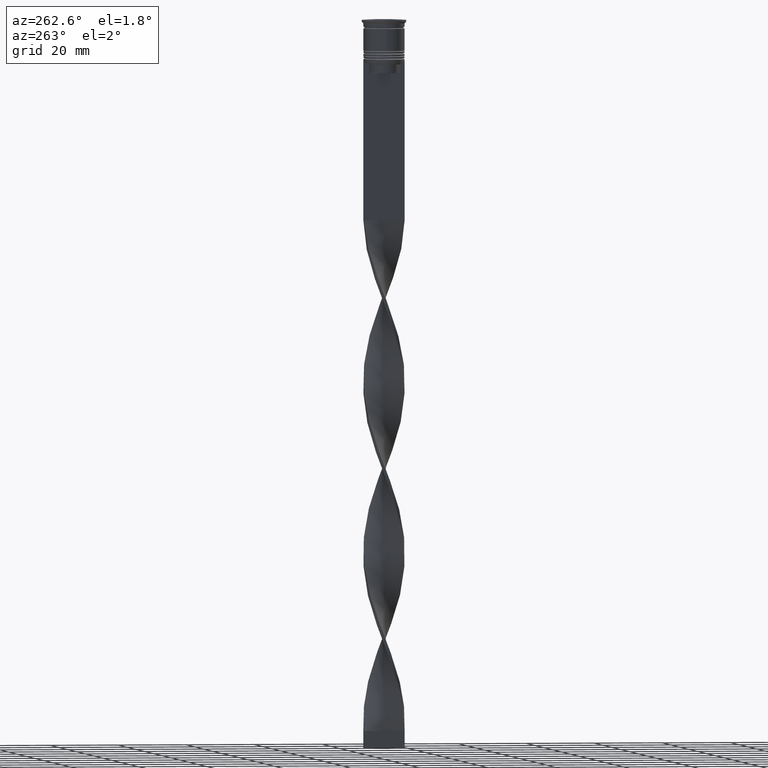
[diagram: clean part render]
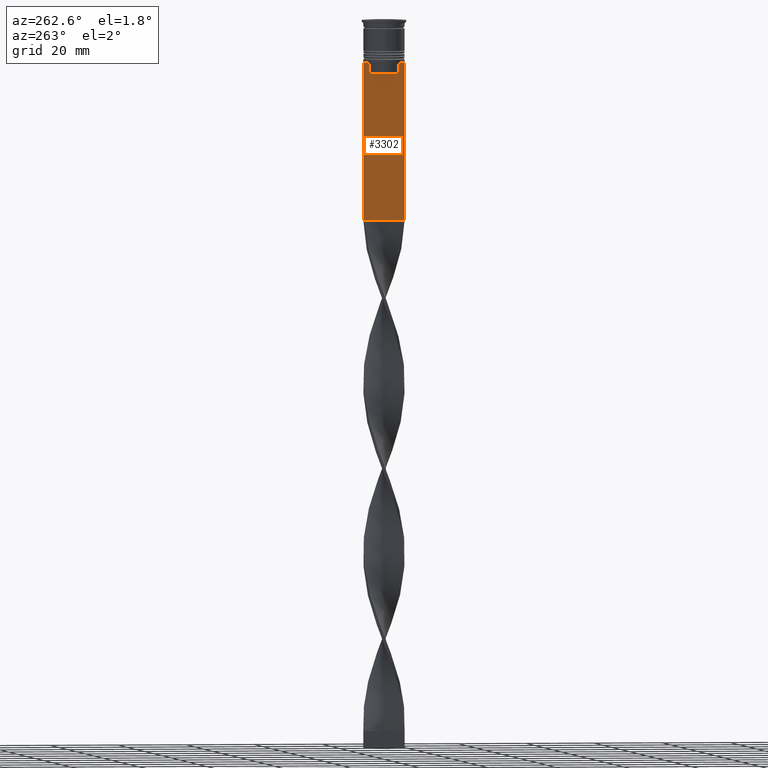
[diagram: same view with one face highlighted and labeled with its STEP entity id]
A machine part, auxiliary view. The second image highlights one B-rep face of the part: STEP entity #3302.
In plain terms, the highlighted planar face has unit normal (-1, 0, 0).
Its self-contained STEP definition (entity closure, byte-faithful):
#37 = CARTESIAN_POINT ( 'NONE',  ( -0.4999999999999997780, -4.706831372970964544, -12.66671687695981596 ) ) ;
#42 = EDGE_CURVE ( 'NONE', #1374, #1279, #3377, .T. ) ;
#112 = CARTESIAN_POINT ( 'NONE',  ( -0.4999999999999997780, -6.000000000000000000, -0.4584054212077061097 ) ) ;
#117 = VECTOR ( 'NONE', #424, 1000.000000000000000 ) ;
#166 = DIRECTION ( 'NONE',  ( 0.000000000000000000, 0.000000000000000000, -1.000000000000000000 ) ) ;
#184 = VECTOR ( 'NONE', #1832, 1000.000000000000000 ) ;
#220 = EDGE_CURVE ( 'NONE', #1348, #3477, #797, .T. ) ;
#279 = CARTESIAN_POINT ( 'NONE',  ( -0.4999999999999997780, 4.539195634199897356, -12.83338923751318816 ) ) ;
#299 = LINE ( 'NONE', #2687, #1962 ) ;
#316 = CARTESIAN_POINT ( 'NONE',  ( -0.4999999999999997780, 4.371498598878878816, 0.000000000000000000 ) ) ;
#319 = CARTESIAN_POINT ( 'NONE',  ( -0.4999999999999997780, 5.878775382679627626, -12.50000000000000000 ) ) ;
#334 = VECTOR ( 'NONE', #1087, 1000.000000000000000 ) ;
#353 = VERTEX_POINT ( 'NONE', #1450 ) ;
#355 = DIRECTION ( 'NONE',  ( 0.000000000000000000, 1.000000000000000000, 0.000000000000000000 ) ) ;
#360 = LINE ( 'NONE', #2412, #3786 ) ;
#424 = DIRECTION ( 'NONE',  ( 0.000000000000000000, 0.000000000000000000, -1.000000000000000000 ) ) ;
#478 = CARTESIAN_POINT ( 'NONE',  ( -0.4999999999999997780, 6.000000000000000888, -0.4584054212077061097 ) ) ;
#493 = EDGE_CURVE ( 'NONE', #1917, #1374, #514, .T. ) ;
#510 = CARTESIAN_POINT ( 'NONE',  ( -0.4999999999999997780, -4.874423042781576676, -12.50000000000000000 ) ) ;
#514 = B_SPLINE_CURVE_WITH_KNOTS ( 'NONE', 3,
 ( #1537, #2716, #37, #3028 ),
 .UNSPECIFIED., .F., .F.,
 ( 4, 4 ),
 ( 0.02089901220910806920, 0.02161421017310284978 ),
 .UNSPECIFIED. ) ;
#569 = ORIENTED_EDGE ( 'NONE', *, *, #493, .F. ) ;
#670 = CARTESIAN_POINT ( 'NONE',  ( -0.4999999999999997780, -6.000000000000000000, -12.50000000000000000 ) ) ;
#752 = CARTESIAN_POINT ( 'NONE',  ( -0.4999999999999997780, -6.000000000000000000, -12.50000000000000000 ) ) ;
#769 = VECTOR ( 'NONE', #3397, 1000.000000000000000 ) ;
#783 = EDGE_LOOP ( 'NONE', ( #1185, #2488, #1534, #1811, #3697, #2925, #3375, #1515, #569, #2274, #3158, #1474 ) ) ;
#794 = CARTESIAN_POINT ( 'NONE',  ( -0.4999999999999997780, 4.371498598878878816, -13.00000000000000178 ) ) ;
#797 = LINE ( 'NONE', #478, #2406 ) ;
#810 = EDGE_CURVE ( 'NONE', #1279, #2682, #2959, .T. ) ;
#826 = VERTEX_POINT ( 'NONE', #794 ) ;
#864 = EDGE_CURVE ( 'NONE', #1348, #1492, #299, .T. ) ;
#932 = VECTOR ( 'NONE', #355, 1000.000000000000000 ) ;
#990 = CARTESIAN_POINT ( 'NONE',  ( -0.4999999999999997780, 4.874423042781576676, -12.50000000000000000 ) ) ;
#1029 = CARTESIAN_POINT ( 'NONE',  ( -0.4999999999999997780, 6.000000000000001776, -12.50000000000000000 ) ) ;
#1044 = PLANE ( 'NONE',  #1253 ) ;
#1087 = DIRECTION ( 'NONE',  ( 0.000000000000000000, -1.000000000000000000, 0.000000000000000000 ) ) ;
#1125 = DIRECTION ( 'NONE',  ( -1.000000000000000000, 0.000000000000000000, 0.000000000000000000 ) ) ;
#1149 = EDGE_CURVE ( 'NONE', #1794, #1917, #360, .T. ) ;
#1180 = VERTEX_POINT ( 'NONE', #990 ) ;
#1185 = ORIENTED_EDGE ( 'NONE', *, *, #1574, .F. ) ;
#1253 = AXIS2_PLACEMENT_3D ( 'NONE', #2243, #1125, #2323 ) ;
#1279 = VERTEX_POINT ( 'NONE', #2835 ) ;
#1316 = VERTEX_POINT ( 'NONE', #3074 ) ;
#1348 = VERTEX_POINT ( 'NONE', #1029 ) ;
#1374 = VERTEX_POINT ( 'NONE', #510 ) ;
#1434 = VECTOR ( 'NONE', #2167, 1000.000000000000000 ) ;
#1450 = CARTESIAN_POINT ( 'NONE',  ( -0.4999999999999997780, -6.000000000000000000, -58.50000000000000000 ) ) ;
#1474 = ORIENTED_EDGE ( 'NONE', *, *, #3715, .F. ) ;
#1492 = VERTEX_POINT ( 'NONE', #319 ) ;
#1515 = ORIENTED_EDGE ( 'NONE', *, *, #42, .F. ) ;
#1534 = ORIENTED_EDGE ( 'NONE', *, *, #864, .F. ) ;
#1537 = CARTESIAN_POINT ( 'NONE',  ( -0.4999999999999997780, -4.371498598878878816, -13.00000000000000178 ) ) ;
#1565 = DIRECTION ( 'NONE',  ( -0.000000000000000000, -0.000000000000000000, 1.000000000000000000 ) ) ;
#1574 = EDGE_CURVE ( 'NONE', #1180, #826, #3516, .T. ) ;
#1718 = CARTESIAN_POINT ( 'NONE',  ( -0.4999999999999997780, -4.371498598878878816, -15.50000000000000000 ) ) ;
#1774 = CARTESIAN_POINT ( 'NONE',  ( -0.4999999999999997780, 4.874423042781576676, -12.50000000000000000 ) ) ;
#1794 = VERTEX_POINT ( 'NONE', #1718 ) ;
#1811 = ORIENTED_EDGE ( 'NONE', *, *, #220, .T. ) ;
#1832 = DIRECTION ( 'NONE',  ( 0.000000000000000000, 0.000000000000000000, -1.000000000000000000 ) ) ;
#1853 = LINE ( 'NONE', #3383, #1434 ) ;
#1917 = VERTEX_POINT ( 'NONE', #3548 ) ;
#1962 = VECTOR ( 'NONE', #2751, 1000.000000000000000 ) ;
#2058 = EDGE_CURVE ( 'NONE', #353, #3477, #3033, .T. ) ;
#2108 = EDGE_CURVE ( 'NONE', #1316, #1794, #1853, .T. ) ;
#2128 = VECTOR ( 'NONE', #2261, 1000.000000000000000 ) ;
#2167 = DIRECTION ( 'NONE',  ( 0.000000000000000000, -1.000000000000000000, 0.000000000000000000 ) ) ;
#2243 = CARTESIAN_POINT ( 'NONE',  ( -0.4999999999999997780, -6.000000000000000000, -0.4584054212077061097 ) ) ;
#2261 = DIRECTION ( 'NONE',  ( 0.000000000000000000, -1.000000000000000000, 0.000000000000000000 ) ) ;
#2274 = ORIENTED_EDGE ( 'NONE', *, *, #1149, .F. ) ;
#2323 = DIRECTION ( 'NONE',  ( 0.000000000000000000, 0.000000000000000000, 1.000000000000000000 ) ) ;
#2406 = VECTOR ( 'NONE', #166, 1000.000000000000000 ) ;
#2412 = CARTESIAN_POINT ( 'NONE',  ( -0.4999999999999997780, -4.371498598878878816, 0.000000000000000000 ) ) ;
#2488 = ORIENTED_EDGE ( 'NONE', *, *, #3308, .F. ) ;
#2501 = CARTESIAN_POINT ( 'NONE',  ( -0.4999999999999997780, -6.000000000000000000, -12.50000000000000000 ) ) ;
#2682 = VERTEX_POINT ( 'NONE', #2501 ) ;
#2685 = CARTESIAN_POINT ( 'NONE',  ( -0.4999999999999997780, 4.371498598878878816, -13.00000000000000178 ) ) ;
#2687 = CARTESIAN_POINT ( 'NONE',  ( -0.4999999999999997780, -6.000000000000000000, -12.50000000000000000 ) ) ;
#2716 = CARTESIAN_POINT ( 'NONE',  ( -0.4999999999999997780, -4.539195586926424220, -12.83338928448044136 ) ) ;
#2751 = DIRECTION ( 'NONE',  ( 0.000000000000000000, -1.000000000000000000, 0.000000000000000000 ) ) ;
#2752 = LINE ( 'NONE', #316, #184 ) ;
#2835 = CARTESIAN_POINT ( 'NONE',  ( -0.4999999999999997780, -5.878775382679627626, -12.50000000000000000 ) ) ;
#2925 = ORIENTED_EDGE ( 'NONE', *, *, #3360, .F. ) ;
#2959 = LINE ( 'NONE', #3781, #334 ) ;
#2973 = CARTESIAN_POINT ( 'NONE',  ( -0.4999999999999997780, 4.706831415367290106, -12.66671683478478982 ) ) ;
#3028 = CARTESIAN_POINT ( 'NONE',  ( -0.4999999999999997780, -4.874423042781576676, -12.50000000000000000 ) ) ;
#3033 = LINE ( 'NONE', #3645, #932 ) ;
#3074 = CARTESIAN_POINT ( 'NONE',  ( -0.4999999999999997780, 4.371498598878878816, -15.50000000000000000 ) ) ;
#3158 = ORIENTED_EDGE ( 'NONE', *, *, #2108, .F. ) ;
#3302 = ADVANCED_FACE ( 'NONE', ( #3815 ), #1044, .T. ) ;
#3308 = EDGE_CURVE ( 'NONE', #1492, #1180, #3440, .T. ) ;
#3360 = EDGE_CURVE ( 'NONE', #2682, #353, #3458, .T. ) ;
#3375 = ORIENTED_EDGE ( 'NONE', *, *, #810, .F. ) ;
#3377 = LINE ( 'NONE', #670, #769 ) ;
#3383 = CARTESIAN_POINT ( 'NONE',  ( -0.4999999999999997780, 4.399999999999999467, -15.50000000000000000 ) ) ;
#3397 = DIRECTION ( 'NONE',  ( 0.000000000000000000, -1.000000000000000000, 0.000000000000000000 ) ) ;
#3440 = LINE ( 'NONE', #752, #2128 ) ;
#3458 = LINE ( 'NONE', #112, #117 ) ;
#3477 = VERTEX_POINT ( 'NONE', #3585 ) ;
#3516 = B_SPLINE_CURVE_WITH_KNOTS ( 'NONE', 3,
 ( #1774, #2973, #279, #2685 ),
 .UNSPECIFIED., .F., .F.,
 ( 4, 4 ),
 ( 0.008336552452178418518, 0.009045730124312837891 ),
 .UNSPECIFIED. ) ;
#3548 = CARTESIAN_POINT ( 'NONE',  ( -0.4999999999999997780, -4.371498598878878816, -13.00000000000000178 ) ) ;
#3585 = CARTESIAN_POINT ( 'NONE',  ( -0.4999999999999997780, 6.000000000000000888, -58.50000000000000000 ) ) ;
#3645 = CARTESIAN_POINT ( 'NONE',  ( -0.4999999999999997780, -6.000000000000000000, -58.50000000000000000 ) ) ;
#3697 = ORIENTED_EDGE ( 'NONE', *, *, #2058, .F. ) ;
#3715 = EDGE_CURVE ( 'NONE', #826, #1316, #2752, .T. ) ;
#3781 = CARTESIAN_POINT ( 'NONE',  ( -0.4999999999999997780, -6.000000000000000000, -12.50000000000000000 ) ) ;
#3786 = VECTOR ( 'NONE', #1565, 1000.000000000000000 ) ;
#3815 = FACE_OUTER_BOUND ( 'NONE', #783, .T. ) ;